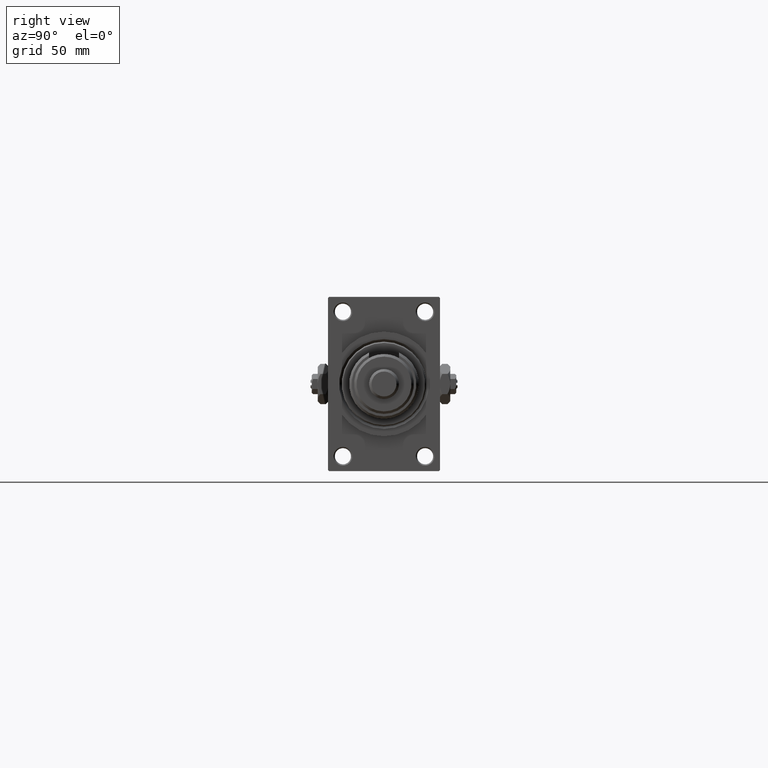
[diagram: clean part render]
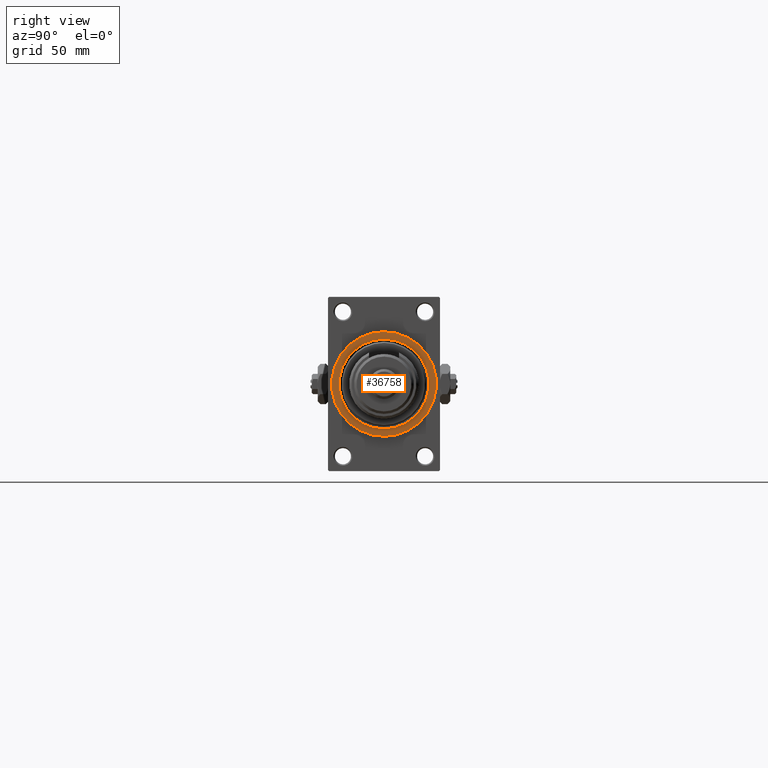
[diagram: same view with one face highlighted and labeled with its STEP entity id]
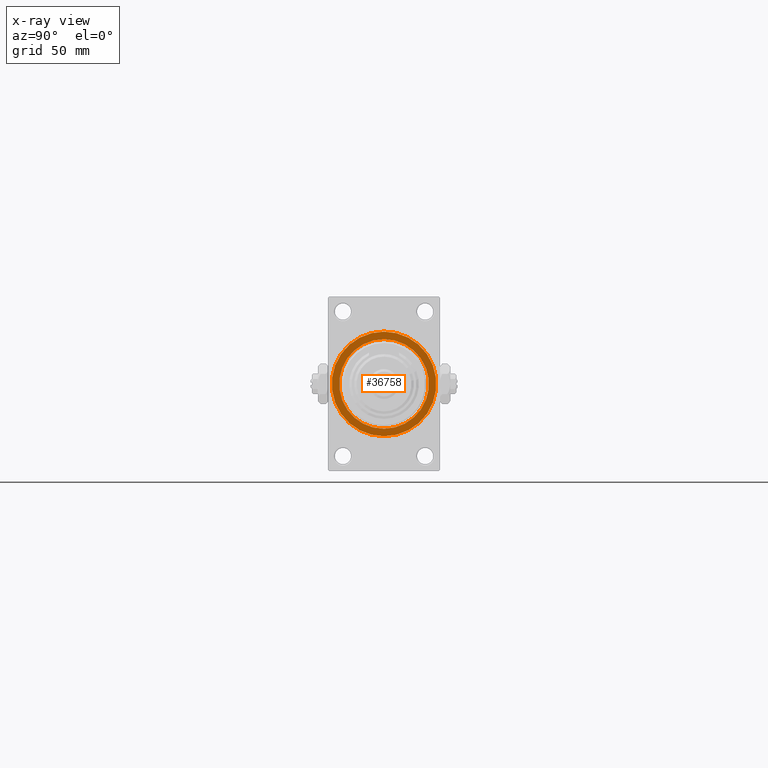
[diagram: x-ray of the same camera — body ghosted, the highlighted face saturated]
A machine part, right view. The second image highlights one B-rep face of the part: STEP entity #36758.
The next image is the same camera in x-ray: the body ghosted, the highlighted face saturated — about 0% of this face is hidden behind the body in this view.
In plain terms, the highlighted planar face has unit normal (1, 0, 0).
Its self-contained STEP definition (entity closure, byte-faithful):
#373 = VERTEX_POINT ( 'NONE', #16569 ) ;
#881 = FACE_BOUND ( 'NONE', #36881, .T. ) ;
#4513 = DIRECTION ( 'NONE',  ( 1.000000000000000000, 0.000000000000000000, 0.000000000000000000 ) ) ;
#4526 = EDGE_CURVE ( 'NONE', #31404, #49535, #45990, .T. ) ;
#5293 = ORIENTED_EDGE ( 'NONE', *, *, #45210, .T. ) ;
#7999 = AXIS2_PLACEMENT_3D ( 'NONE', #45694, #10580, #41797 ) ;
#8446 = DIRECTION ( 'NONE',  ( -1.000000000000000000, -0.000000000000000000, -0.000000000000000000 ) ) ;
#9273 = VERTEX_POINT ( 'NONE', #32598 ) ;
#10580 = DIRECTION ( 'NONE',  ( 1.000000000000000000, 0.000000000000000000, 0.000000000000000000 ) ) ;
#12321 = CARTESIAN_POINT ( 'NONE',  ( 183.0000000000000284, 0.000000000000000000, 0.000000000000000000 ) ) ;
#13107 = DIRECTION ( 'NONE',  ( -1.000000000000000000, -0.000000000000000000, -0.000000000000000000 ) ) ;
#15035 = AXIS2_PLACEMENT_3D ( 'NONE', #38755, #27035, #26525 ) ;
#16160 = CARTESIAN_POINT ( 'NONE',  ( 183.0000000000000284, 0.000000000000000000, -18.00000000000007105 ) ) ;
#16239 = ORIENTED_EDGE ( 'NONE', *, *, #49458, .T. ) ;
#16469 = CIRCLE ( 'NONE', #40537, 18.00000000000007105 ) ;
#16481 = DIRECTION ( 'NONE',  ( 0.000000000000000000, 0.000000000000000000, -1.000000000000000000 ) ) ;
#16569 = CARTESIAN_POINT ( 'NONE',  ( 183.0000000000000284, 0.000000000000000000, 21.00000000000000000 ) ) ;
#19900 = DIRECTION ( 'NONE',  ( 0.000000000000000000, 0.000000000000000000, -1.000000000000000000 ) ) ;
#21933 = AXIS2_PLACEMENT_3D ( 'NONE', #12321, #4513, #16481 ) ;
#24029 = PLANE ( 'NONE',  #21933 ) ;
#25839 = CIRCLE ( 'NONE', #15035, 21.00000000000000000 ) ;
#26525 = DIRECTION ( 'NONE',  ( 0.000000000000000000, 0.000000000000000000, -1.000000000000000000 ) ) ;
#27035 = DIRECTION ( 'NONE',  ( 1.000000000000000000, 0.000000000000000000, 0.000000000000000000 ) ) ;
#27858 = EDGE_CURVE ( 'NONE', #9273, #373, #25839, .T. ) ;
#29235 = DIRECTION ( 'NONE',  ( 0.000000000000000000, 0.000000000000000000, -1.000000000000000000 ) ) ;
#31404 = VERTEX_POINT ( 'NONE', #16160 ) ;
#32598 = CARTESIAN_POINT ( 'NONE',  ( 183.0000000000000284, 2.571758278209441661E-15, -21.00000000000000000 ) ) ;
#36544 = ORIENTED_EDGE ( 'NONE', *, *, #27858, .T. ) ;
#36758 = ADVANCED_FACE ( 'NONE', ( #881, #47966 ), #24029, .T. ) ;
#36881 = EDGE_LOOP ( 'NONE', ( #51407, #16239 ) ) ;
#37688 = EDGE_LOOP ( 'NONE', ( #5293, #36544 ) ) ;
#38755 = CARTESIAN_POINT ( 'NONE',  ( 183.0000000000000284, 0.000000000000000000, 0.000000000000000000 ) ) ;
#40537 = AXIS2_PLACEMENT_3D ( 'NONE', #47985, #8446, #19900 ) ;
#41246 = CIRCLE ( 'NONE', #7999, 21.00000000000000000 ) ;
#41797 = DIRECTION ( 'NONE',  ( 0.000000000000000000, 0.000000000000000000, -1.000000000000000000 ) ) ;
#44593 = CARTESIAN_POINT ( 'NONE',  ( 183.0000000000000284, 2.204364238465244894E-15, 18.00000000000007105 ) ) ;
#44603 = CARTESIAN_POINT ( 'NONE',  ( 183.0000000000000284, 0.000000000000000000, 0.000000000000000000 ) ) ;
#45210 = EDGE_CURVE ( 'NONE', #373, #9273, #41246, .T. ) ;
#45694 = CARTESIAN_POINT ( 'NONE',  ( 183.0000000000000284, 0.000000000000000000, 0.000000000000000000 ) ) ;
#45990 = CIRCLE ( 'NONE', #49317, 18.00000000000007105 ) ;
#47966 = FACE_OUTER_BOUND ( 'NONE', #37688, .T. ) ;
#47985 = CARTESIAN_POINT ( 'NONE',  ( 183.0000000000000284, 0.000000000000000000, 0.000000000000000000 ) ) ;
#49317 = AXIS2_PLACEMENT_3D ( 'NONE', #44603, #13107, #29235 ) ;
#49458 = EDGE_CURVE ( 'NONE', #49535, #31404, #16469, .T. ) ;
#49535 = VERTEX_POINT ( 'NONE', #44593 ) ;
#51407 = ORIENTED_EDGE ( 'NONE', *, *, #4526, .T. ) ;